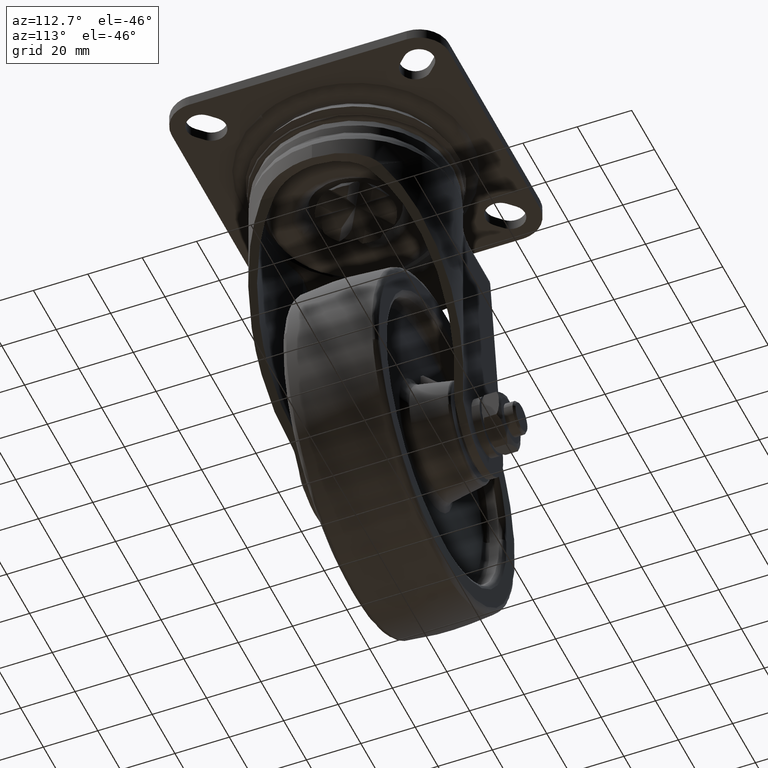
[diagram: clean part render]
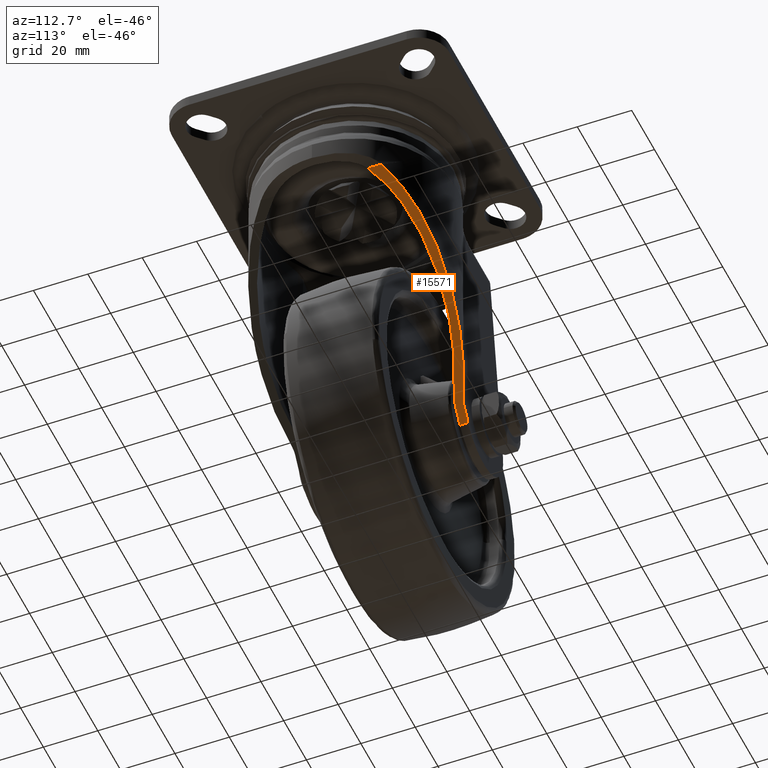
[diagram: same view with one face highlighted and labeled with its STEP entity id]
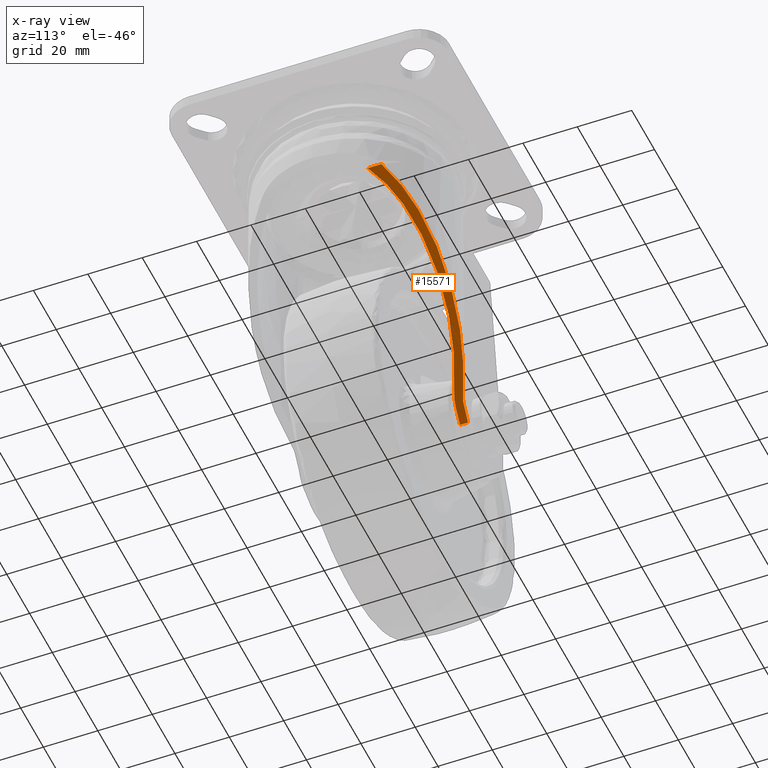
[diagram: x-ray of the same camera — body ghosted, the highlighted face saturated]
A machine part, auxiliary view. The second image highlights one B-rep face of the part: STEP entity #15571.
The next image is the same camera in x-ray: the body ghosted, the highlighted face saturated — about 0% of this face is hidden behind the body in this view.
In plain terms, the highlighted face is a freeform B-spline surface patch.
Its self-contained STEP definition (entity closure, byte-faithful):
#13660=CARTESIAN_POINT('',(-20.651122311165452,31.0,-109.900712536361400));
#13661=VERTEX_POINT('',#13660);
#13667=CARTESIAN_POINT('',(-24.576089803991849,31.0,-115.394420725650800));
#13668=VERTEX_POINT('',#13667);
#13669=CARTESIAN_POINT('',(-20.651122311165452,31.0,-109.900712536361400));
#13670=CARTESIAN_POINT('',(-24.576089803991849,31.0,-115.394420725650800));
#13671=QUASI_UNIFORM_CURVE('',1,(#13669,#13670),.UNSPECIFIED.,.F.,.U.);
#13672=EDGE_CURVE('',#13661,#13668,#13671,.T.);
#13864=CARTESIAN_POINT('',(30.524638671319899,22.174488619809349,-38.270897075102347));
#13865=VERTEX_POINT('',#13864);
#13873=CARTESIAN_POINT('',(-19.232691642807701,31.356507151690700,-107.915359997024790));
#13874=VERTEX_POINT('',#13873);
#13875=CARTESIAN_POINT('',(30.524638671319892,22.174488619809381,-38.270897075102340));
#13876=CARTESIAN_POINT('',(30.083635899502578,22.705563576201978,-38.888160923391560));
#13877=CARTESIAN_POINT('',(29.635434936662271,23.214790824952480,-39.515499953460733));
#13878=CARTESIAN_POINT('',(28.726120427590310,24.194053483011881,-40.788251530195673));
#13879=CARTESIAN_POINT('',(28.265003255143480,24.664077886154061,-41.433669152411383));
#13880=CARTESIAN_POINT('',(26.863997456743590,26.020567414627880,-43.394632406751327));
#13881=CARTESIAN_POINT('',(25.906454191162808,26.853772458380949,-44.734888928451007));
#13882=CARTESIAN_POINT('',(23.951287624088611,28.397226893849218,-47.471501295455759));
#13883=CARTESIAN_POINT('',(22.959224754156960,29.103039277706909,-48.860074302186213));
#13884=CARTESIAN_POINT('',(21.452262267670299,30.075864995706450,-50.969343275265523));
#13885=CARTESIAN_POINT('',(20.946783442147950,30.385764214775062,-51.676853125566119));
#13886=CARTESIAN_POINT('',(19.929853342966659,30.978374519492199,-53.100232357118493));
#13887=CARTESIAN_POINT('',(19.418329939040792,31.261121099855821,-53.816202697840403));
#13888=CARTESIAN_POINT('',(17.875660893667749,32.070237785867150,-55.975449515404790));
#13889=CARTESIAN_POINT('',(16.839545212468352,32.555996658156850,-57.425682469756403));
#13890=CARTESIAN_POINT('',(15.274895133217671,33.211347290118411,-59.615695755079649));
#13891=CARTESIAN_POINT('',(14.751594452235770,33.417550977430267,-60.348150544023802));
#13892=CARTESIAN_POINT('',(13.701615763771510,33.806332613059702,-61.817787306605418));
#13893=CARTESIAN_POINT('',(13.174848140516220,33.988938525352239,-62.555094713869153));
#13894=CARTESIAN_POINT('',(11.590196419911431,34.502164015731189,-64.773103945937748));
#13895=CARTESIAN_POINT('',(10.529965091424890,34.797640527814622,-66.257091149014727));
#13896=CARTESIAN_POINT('',(8.934233989112547,35.174669626089702,-68.490607997421606));
#13897=CARTESIAN_POINT('',(8.401424663285214,35.289295295256863,-69.236371869855660));
#13898=CARTESIAN_POINT('',(7.334042430542311,35.496867320816733,-70.730368068254521));
#13899=CARTESIAN_POINT('',(6.799365021356322,35.589829124208030,-71.478746664215265));
#13900=CARTESIAN_POINT('',(5.193410073815741,35.836533975533300,-73.726573649549181));
#13901=CARTESIAN_POINT('',(4.121622881351042,35.957956454814507,-75.226735392845157));
#13902=CARTESIAN_POINT('',(2.512257518917160,36.077063032797703,-77.479335876115655));
#13903=CARTESIAN_POINT('',(1.975521242116696,36.106245971973287,-78.230596232981412));
#13904=CARTESIAN_POINT('',(0.901488703336988,36.143660398916403,-79.733900748150390));
#13905=CARTESIAN_POINT('',(0.364069426426012,36.151890910360301,-80.486117088296865));
#13906=CARTESIAN_POINT('',(-1.248191523535759,36.145127354792642,-82.742770474666244));
#13907=CARTESIAN_POINT('',(-2.321951639017204,36.098758583820640,-84.245693683720674));
#13908=CARTESIAN_POINT('',(-3.930962045644844,35.966067555553117,-86.497797341572053));
#13909=CARTESIAN_POINT('',(-4.467026868888095,35.911300628511562,-87.248117876665233));
#13910=CARTESIAN_POINT('',(-5.538606723337394,35.780467590066898,-88.747989412576075));
#13911=CARTESIAN_POINT('',(-6.074279131065378,35.704375420710669,-89.497760690552354));
#13912=CARTESIAN_POINT('',(-7.679343759037753,35.443818927089907,-91.744341511195202));
#13913=CARTESIAN_POINT('',(-8.745851687740311,35.227319222563992,-93.237113961556744));
#13914=CARTESIAN_POINT('',(-10.871544651910080,34.705671416927807,-96.212409136999028));
#13915=CARTESIAN_POINT('',(-11.930731039729050,34.400539686917213,-97.694933754942966));
#13916=CARTESIAN_POINT('',(-13.513689878837340,33.872378207803393,-99.910573490459598));
#13917=CARTESIAN_POINT('',(-14.039884789098091,33.684716405767396,-100.647079281385400));
#13918=CARTESIAN_POINT('',(-15.088458684534130,33.285738206479238,-102.114749779793400));
#13919=CARTESIAN_POINT('',(-15.610963134917240,33.074381192915837,-102.846090098727500));
#13920=CARTESIAN_POINT('',(-17.172929954140258,32.403381197460853,-105.032347672031610));
#13921=CARTESIAN_POINT('',(-18.206865325715171,31.906939323089709,-106.479528885226000));
#13922=CARTESIAN_POINT('',(-19.232691642807641,31.356507151690732,-107.915359997024890));
#13923=B_SPLINE_CURVE_WITH_KNOTS('',3,(#13875,#13876,#13877,#13878,#13879,#13880,#13881,#13882,#13883,#13884,#13885,#13886,#13887,#13888,#13889,#13890,#13891,#13892,#13893,#13894,#13895,#13896,#13897,#13898,#13899,#13900,#13901,#13902,#13903,#13904,#13905,#13906,#13907,#13908,#13909,#13910,#13911,#13912,#13913,#13914,#13915,#13916,#13917,#13918,#13919,#13920,#13921,#13922),.UNSPECIFIED.,.F.,.U.,(4,2,2,2,2,2,2,2,2,2,2,2,2,2,2,2,2,2,2,2,2,2,2,4),(0.0,0.031250000000000,0.062500000000000,0.125000000000001,0.187500000000001,0.218750000000001,0.250000000000001,0.312500000000002,0.343750000000002,0.375000000000002,0.437500000000003,0.468750000000003,0.500000000000003,0.562500000000003,0.593750000000003,0.625000000000002,0.687500000000002,0.718750000000001,0.750000000000001,0.812500000000001,0.875000000000001,0.906250000000001,0.937500000000001,1.0),.UNSPECIFIED.);
#13924=EDGE_CURVE('',#13865,#13874,#13923,.T.);
#14191=CARTESIAN_POINT('',(30.524638671319899,17.122347038727149,-38.270897075102347));
#14192=VERTEX_POINT('',#14191);
#14200=CARTESIAN_POINT('',(30.524638671319899,22.174488619809349,-38.270897075102347));
#14201=CARTESIAN_POINT('',(30.524638671319899,17.122347038727149,-38.270897075102347));
#14202=QUASI_UNIFORM_CURVE('',1,(#14200,#14201),.UNSPECIFIED.,.F.,.U.);
#14203=EDGE_CURVE('',#13865,#14192,#14202,.T.);
#15213=CARTESIAN_POINT('',(-17.814260974449851,28.713014303381499,-105.930007457688210));
#15214=VERTEX_POINT('',#15213);
#15243=CARTESIAN_POINT('',(-20.651122311165452,28.0,-109.900712536361400));
#15244=VERTEX_POINT('',#15243);
#15250=CARTESIAN_POINT('',(-17.814260974449930,28.713014303381499,-105.930007457688300));
#15251=CARTESIAN_POINT('',(-19.143087440049015,28.000000000000007,-107.789942565316300));
#15252=CARTESIAN_POINT('',(-20.651122311165452,28.0,-109.900712536361400));
#15260=(BOUNDED_CURVE()B_SPLINE_CURVE(2,(#15250,#15251,#15252),.UNSPECIFIED.,.F.,.U.)CURVE()GEOMETRIC_REPRESENTATION_ITEM()QUASI_UNIFORM_CURVE()RATIONAL_B_SPLINE_CURVE((1.0,0.969836141513027,1.0))REPRESENTATION_ITEM(''));
#15261=EDGE_CURVE('',#15214,#15244,#15260,.T.);
#15316=CARTESIAN_POINT('',(-20.651122311165452,31.0,-109.900712536361400));
#15317=CARTESIAN_POINT('',(-19.897104875607297,31.000000000000004,-108.845327550838930));
#15318=CARTESIAN_POINT('',(-19.232691642807790,31.356507151690700,-107.915359997025010));
#15326=(BOUNDED_CURVE()B_SPLINE_CURVE(2,(#15316,#15317,#15318),.UNSPECIFIED.,.F.,.U.)CURVE()GEOMETRIC_REPRESENTATION_ITEM()QUASI_UNIFORM_CURVE()RATIONAL_B_SPLINE_CURVE((1.0,0.969836141513026,1.0))REPRESENTATION_ITEM(''));
#15327=EDGE_CURVE('',#13661,#13874,#15326,.T.);
#15488=CARTESIAN_POINT('',(-27.328371084537789,16.172136307885939,-119.246740582515300));
#15489=CARTESIAN_POINT('',(33.276921429782497,16.172136307885939,-34.418575149623692));
#15490=CARTESIAN_POINT('',(-27.328371084537789,37.095796871946767,-119.246740582515300));
#15491=CARTESIAN_POINT('',(33.276921429782497,37.095796871946767,-34.418575149623692));
#15492=B_SPLINE_SURFACE_WITH_KNOTS('',1,1,((#15488,#15490),(#15489,#15491)),.UNSPECIFIED.,.F.,.F.,.U.,(2,2),(2,2),(0.0,104.253628864689200),(0.0,20.923660564060839),.UNSPECIFIED.);
#15493=ORIENTED_EDGE('',*,*,#13924,.F.);
#15494=ORIENTED_EDGE('',*,*,#14203,.T.);
#15495=CARTESIAN_POINT('',(30.524638671319892,17.122347038727149,-38.270897075102340));
#15496=CARTESIAN_POINT('',(30.130560022159461,17.729689434324840,-38.822482051557209));
#15497=CARTESIAN_POINT('',(29.725093416686711,18.310670067670550,-39.390006550814888));
#15498=CARTESIAN_POINT('',(28.894223434241692,19.426480083344838,-40.552960698877399));
#15499=CARTESIAN_POINT('',(28.468810663794571,19.961287720898170,-41.148403495564203));
#15500=CARTESIAN_POINT('',(27.817307374197679,20.732516501598290,-42.060301228207592));
#15501=CARTESIAN_POINT('',(27.597904123827139,20.984417875335868,-42.367396111291562));
#15502=CARTESIAN_POINT('',(27.154840673549831,21.478366291751719,-42.987544255094491));
#15503=CARTESIAN_POINT('',(26.931034276622590,21.720563960705672,-43.300802145220132));
#15504=CARTESIAN_POINT('',(26.254777073524728,22.431709187874791,-44.247347496618573));
#15505=CARTESIAN_POINT('',(25.797567497893880,22.885216950039560,-44.887295724076488));
#15506=CARTESIAN_POINT('',(24.871629105638000,23.755008504801442,-46.183315458663010));
#15507=CARTESIAN_POINT('',(24.402897408992558,24.171282990727178,-46.839390996905507));
#15508=CARTESIAN_POINT('',(23.691867539337728,24.770061727573331,-47.834607040068008));
#15509=CARTESIAN_POINT('',(23.453533655159021,24.965376420333211,-48.168198799411492));
#15510=CARTESIAN_POINT('',(22.974316695045449,25.347768193982660,-48.838950377108368));
#15511=CARTESIAN_POINT('',(22.733416395926952,25.534851971813250,-49.176134302450137));
#15512=CARTESIAN_POINT('',(21.525202830571491,26.448598103910079,-50.867249648127547));
#15513=CARTESIAN_POINT('',(20.544860151520790,27.112179526320041,-52.239418109154030));
#15514=CARTESIAN_POINT('',(18.560374969830921,28.322838102234989,-55.017067227038119));
#15515=CARTESIAN_POINT('',(17.556211161752589,28.869810961916031,-56.422577704745358));
#15516=CARTESIAN_POINT('',(16.287594998151590,29.487875887704771,-58.198237508241192));
#15517=CARTESIAN_POINT('',(16.033198652866190,29.608193869981090,-58.554311612797299));
#15518=CARTESIAN_POINT('',(15.523087594673980,29.842376196114689,-59.268305117956139));
#15519=CARTESIAN_POINT('',(15.267443575290450,29.956205394399639,-59.626125570073761));
#15520=CARTESIAN_POINT('',(14.499678476119440,30.287743105192810,-60.700752919338491));
#15521=CARTESIAN_POINT('',(13.986382404640770,30.495668603494462,-61.419204431756498));
#15522=CARTESIAN_POINT('',(12.442327886251430,31.081874958670120,-63.580390471612418));
#15523=CARTESIAN_POINT('',(11.407413773767200,31.422681608665719,-65.028941611298720));
#15524=CARTESIAN_POINT('',(9.847268162547872,31.863784626976958,-67.212650071688429));
#15525=CARTESIAN_POINT('',(9.325921050520394,31.999108912843301,-67.942370484416060));
#15526=CARTESIAN_POINT('',(8.280689639327729,32.246878098830443,-69.405362566227311));
#15527=CARTESIAN_POINT('',(7.756570295920509,32.359359904245942,-70.138963222615772));
#15528=CARTESIAN_POINT('',(6.183501165177836,32.662523243578583,-72.340760506714147));
#15529=CARTESIAN_POINT('',(5.133132294502630,32.819205059085277,-73.810943400495944));
#15530=CARTESIAN_POINT('',(3.029192740367955,33.044743367028090,-76.755790709281214));
#15531=CARTESIAN_POINT('',(1.975621773180901,33.113592076850558,-78.230455521413333));
#15532=CARTESIAN_POINT('',(0.392886704020281,33.151619937769489,-80.445782050057247));
#15533=CARTESIAN_POINT('',(-0.135238051202068,33.153393542656573,-81.184989011142591));
#15534=CARTESIAN_POINT('',(-1.190334719558349,33.135142716393730,-82.661789320453394));
#15535=CARTESIAN_POINT('',(-1.717525734892532,33.115129958287689,-83.399689342187159));
#15536=CARTESIAN_POINT('',(-3.298025362404467,33.022385103822607,-85.611886962345963));
#15537=CARTESIAN_POINT('',(-4.350262772088325,32.917013947741943,-87.084685217420088));
#15538=CARTESIAN_POINT('',(-5.926430737934199,32.692285304382992,-89.290819886685242));
#15539=CARTESIAN_POINT('',(-6.451454826204389,32.606247250164593,-90.025686898596959));
#15540=CARTESIAN_POINT('',(-7.500758153855474,32.411475930019542,-91.494378370488405));
#15541=CARTESIAN_POINT('',(-8.025090840833993,32.302718188045667,-92.228277640133484));
#15542=CARTESIAN_POINT('',(-9.594057501815749,31.942249196343500,-94.424332769229764));
#15543=CARTESIAN_POINT('',(-10.635612526384980,31.656274007381391,-95.882179077136612));
#15544=CARTESIAN_POINT('',(-12.190935765097340,31.154943960694371,-98.059137747271535));
#15545=CARTESIAN_POINT('',(-12.708206569274740,30.975751476138520,-98.783152623365055));
#15546=CARTESIAN_POINT('',(-13.740316771041330,30.592263531369522,-100.227779178376590));
#15547=CARTESIAN_POINT('',(-14.254638027300970,30.388154550316660,-100.947665623959590));
#15548=CARTESIAN_POINT('',(-15.791090331107270,29.737758124325872,-103.098210977341590));
#15549=CARTESIAN_POINT('',(-16.807194632748899,29.253380351677450,-104.520434354554990));
#15550=CARTESIAN_POINT('',(-17.814260974449830,28.713014303381499,-105.930007457688210));
#15551=B_SPLINE_CURVE_WITH_KNOTS('',3,(#15495,#15496,#15497,#15498,#15499,#15500,#15501,#15502,#15503,#15504,#15505,#15506,#15507,#15508,#15509,#15510,#15511,#15512,#15513,#15514,#15515,#15516,#15517,#15518,#15519,#15520,#15521,#15522,#15523,#15524,#15525,#15526,#15527,#15528,#15529,#15530,#15531,#15532,#15533,#15534,#15535,#15536,#15537,#15538,#15539,#15540,#15541,#15542,#15543,#15544,#15545,#15546,#15547,#15548,#15549,#15550),.UNSPECIFIED.,.F.,.U.,(4,2,2,2,2,2,2,2,2,2,2,2,2,2,2,2,2,2,2,2,2,2,2,2,2,2,2,4),(0.0,0.031250000000000,0.062500000000000,0.078125000000000,0.093750000000000,0.125000000000000,0.156249999999999,0.171874999999999,0.187499999999999,0.250000000000000,0.312500000000000,0.328125000000000,0.343750000000000,0.375000000000000,0.437500000000000,0.468750000000000,0.500000000000000,0.562500000000000,0.625000000000000,0.656250000000000,0.687500000000000,0.750000000000000,0.781250000000000,0.812500000000000,0.875000000000000,0.906250000000000,0.937500000000000,1.0),.UNSPECIFIED.);
#15552=EDGE_CURVE('',#14192,#15214,#15551,.T.);
#15553=ORIENTED_EDGE('',*,*,#15552,.T.);
#15554=ORIENTED_EDGE('',*,*,#15261,.T.);
#15555=CARTESIAN_POINT('',(-24.576089803991849,28.0,-115.394420725650800));
#15556=VERTEX_POINT('',#15555);
#15557=CARTESIAN_POINT('',(-20.651122311165452,28.0,-109.900712536361400));
#15558=CARTESIAN_POINT('',(-24.576089803991849,28.0,-115.394420725650800));
#15559=QUASI_UNIFORM_CURVE('',1,(#15557,#15558),.UNSPECIFIED.,.F.,.U.);
#15560=EDGE_CURVE('',#15244,#15556,#15559,.T.);
#15561=ORIENTED_EDGE('',*,*,#15560,.T.);
#15562=CARTESIAN_POINT('',(-24.576089803991849,31.0,-115.394420725650800));
#15563=CARTESIAN_POINT('',(-24.576089803991849,28.0,-115.394420725650800));
#15564=QUASI_UNIFORM_CURVE('',1,(#15562,#15563),.UNSPECIFIED.,.F.,.U.);
#15565=EDGE_CURVE('',#13668,#15556,#15564,.T.);
#15566=ORIENTED_EDGE('',*,*,#15565,.F.);
#15567=ORIENTED_EDGE('',*,*,#13672,.F.);
#15568=ORIENTED_EDGE('',*,*,#15327,.T.);
#15569=EDGE_LOOP('',(#15493,#15494,#15553,#15554,#15561,#15566,#15567,#15568));
#15570=FACE_OUTER_BOUND('',#15569,.T.);
#15571=ADVANCED_FACE('',(#15570),#15492,.F.);